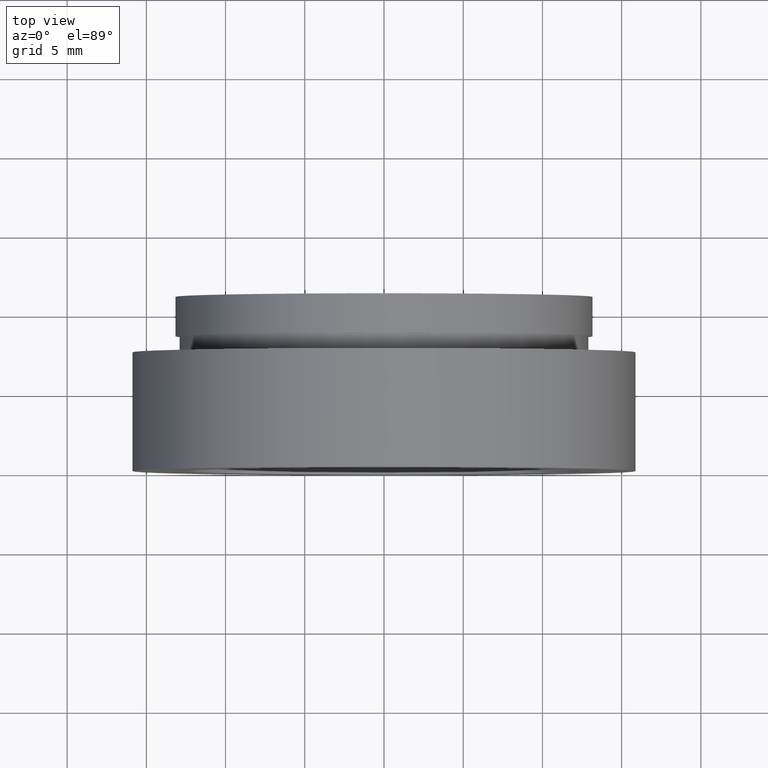
[diagram: clean part render]
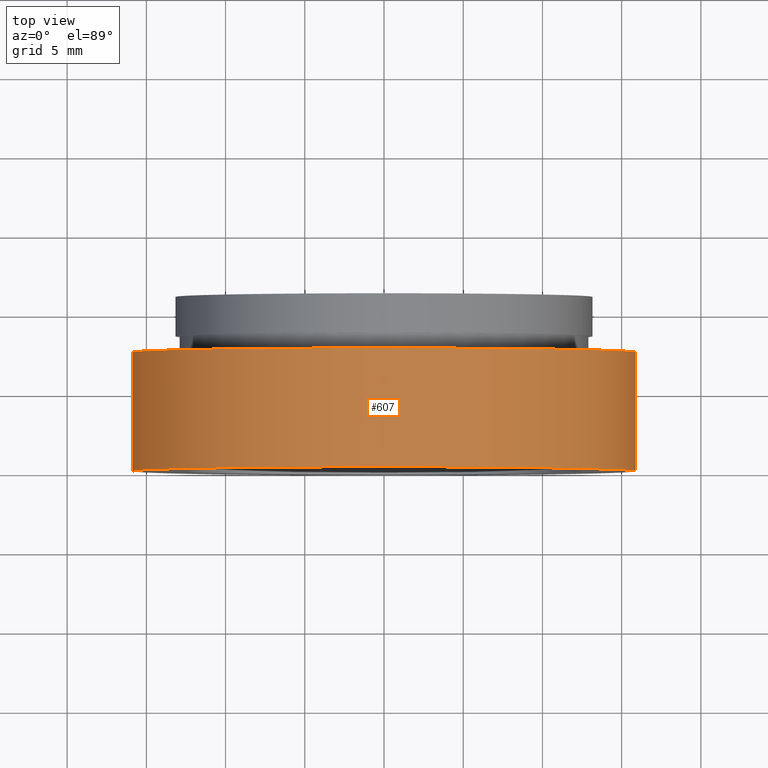
[diagram: same view with one face highlighted and labeled with its STEP entity id]
A machine part, top view. The second image highlights one B-rep face of the part: STEP entity #607.
In plain terms, the highlighted cylindrical surface (partial cylindrical patch) has radius 15.875 mm, axis along (-0, 1, -0).
Its self-contained STEP definition (entity closure, byte-faithful):
#6 = DIRECTION ( 'NONE',  ( -1.224646799147351000E-016, 1.000000000000000000, -0.0000000000000000000 ) ) ;
#7 = EDGE_CURVE ( 'NONE', #517, #200, #553, .T. ) ;
#54 = CYLINDRICAL_SURFACE ( 'NONE', #423, 15.87500000000000000 ) ;
#55 = CARTESIAN_POINT ( 'NONE',  ( 2.067940818438636500E-015, -3.469446951953614200E-015, 0.0000000000000000000 ) ) ;
#68 = CARTESIAN_POINT ( 'NONE',  ( -15.87500000000000000, 16.88601823708207300, 0.0000000000000000000 ) ) ;
#81 = ORIENTED_EDGE ( 'NONE', *, *, #570, .F. ) ;
#88 = VECTOR ( 'NONE', #308, 1000.000000000000000 ) ;
#89 = VERTEX_POINT ( 'NONE', #548 ) ;
#130 = CIRCLE ( 'NONE', #582, 15.87500000000000000 ) ;
#143 = DIRECTION ( 'NONE',  ( -1.224646799147351000E-016, 1.000000000000000000, -0.0000000000000000000 ) ) ;
#200 = VERTEX_POINT ( 'NONE', #504 ) ;
#224 = CARTESIAN_POINT ( 'NONE',  ( 15.87500000000000000, 16.88601823708208000, 1.944126793646423200E-015 ) ) ;
#227 = ORIENTED_EDGE ( 'NONE', *, *, #333, .T. ) ;
#237 = CARTESIAN_POINT ( 'NONE',  ( -15.87499999999999300, -5.413573745600033100E-015, 0.0000000000000000000 ) ) ;
#251 = FACE_OUTER_BOUND ( 'NONE', #339, .T. ) ;
#285 = DIRECTION ( 'NONE',  ( -1.224646799147351000E-016, 1.000000000000000000, -0.0000000000000000000 ) ) ;
#287 = CARTESIAN_POINT ( 'NONE',  ( 0.0000000000000000000, 16.88601823708207700, 0.0000000000000000000 ) ) ;
#308 = DIRECTION ( 'NONE',  ( -1.224646799147351000E-016, 1.000000000000000000, -0.0000000000000000000 ) ) ;
#312 = VERTEX_POINT ( 'NONE', #594 ) ;
#323 = ORIENTED_EDGE ( 'NONE', *, *, #7, .F. ) ;
#333 = EDGE_CURVE ( 'NONE', #89, #312, #602, .T. ) ;
#339 = EDGE_LOOP ( 'NONE', ( #343, #227, #81, #323 ) ) ;
#343 = ORIENTED_EDGE ( 'NONE', *, *, #601, .T. ) ;
#378 = CARTESIAN_POINT ( 'NONE',  ( 1.149455719078122700E-015, 7.499999999999998200, 0.0000000000000000000 ) ) ;
#423 = AXIS2_PLACEMENT_3D ( 'NONE', #287, #143, #574 ) ;
#484 = DIRECTION ( 'NONE',  ( -1.000000000000000000, -1.092739197465705300E-016, 0.0000000000000000000 ) ) ;
#494 = VECTOR ( 'NONE', #6, 1000.000000000000000 ) ;
#504 = CARTESIAN_POINT ( 'NONE',  ( -15.87500000000000000, 7.499999999999996400, 0.0000000000000000000 ) ) ;
#517 = VERTEX_POINT ( 'NONE', #237 ) ;
#519 = DIRECTION ( 'NONE',  ( -1.224646799147351000E-016, 1.000000000000000000, -0.0000000000000000000 ) ) ;
#547 = AXIS2_PLACEMENT_3D ( 'NONE', #55, #285, #617 ) ;
#548 = CARTESIAN_POINT ( 'NONE',  ( 15.87500000000000000, -1.525320158307194900E-015, 1.944126793646423200E-015 ) ) ;
#553 = LINE ( 'NONE', #68, #494 ) ;
#564 = CIRCLE ( 'NONE', #547, 15.87499999999999600 ) ;
#570 = EDGE_CURVE ( 'NONE', #200, #312, #130, .T. ) ;
#574 = DIRECTION ( 'NONE',  ( -1.000000000000000000, -2.185478394931410600E-016, 0.0000000000000000000 ) ) ;
#582 = AXIS2_PLACEMENT_3D ( 'NONE', #378, #519, #484 ) ;
#594 = CARTESIAN_POINT ( 'NONE',  ( 15.87500000000000000, 7.500000000000000000, 1.944126793646423200E-015 ) ) ;
#601 = EDGE_CURVE ( 'NONE', #517, #89, #564, .T. ) ;
#602 = LINE ( 'NONE', #224, #88 ) ;
#607 = ADVANCED_FACE ( 'NONE', ( #251 ), #54, .T. ) ;
#617 = DIRECTION ( 'NONE',  ( -1.000000000000000000, -1.224646799147350700E-016, 0.0000000000000000000 ) ) ;